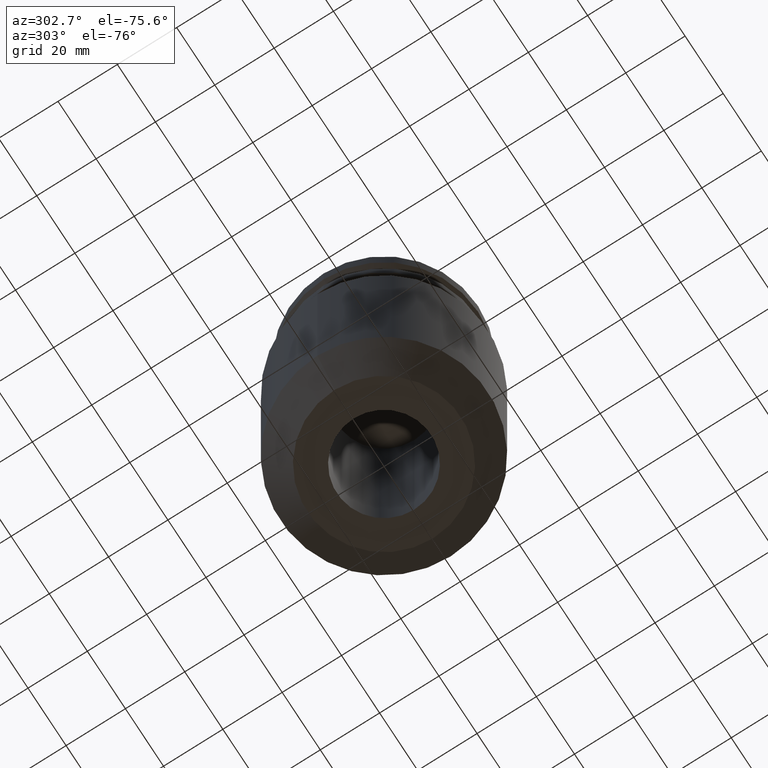
[diagram: clean part render]
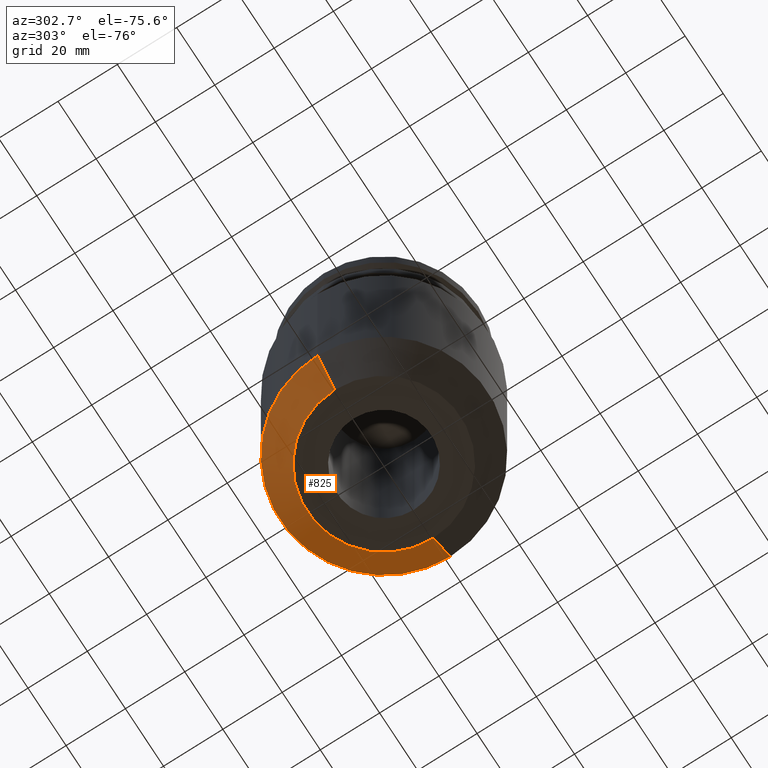
[diagram: same view with one face highlighted and labeled with its STEP entity id]
A machine part, auxiliary view. The second image highlights one B-rep face of the part: STEP entity #825.
In plain terms, the highlighted conical surface has half-angle 45 deg.
Its self-contained STEP definition (entity closure, byte-faithful):
#46 = ORIENTED_EDGE ( 'NONE', *, *, #542, .T. ) ;
#138 = EDGE_CURVE ( 'NONE', #228, #381, #186, .T. ) ;
#143 = DIRECTION ( 'NONE',  ( 1.000000000000000000, 0.000000000000000000, 0.000000000000000000 ) ) ;
#161 = DIRECTION ( 'NONE',  ( 1.000000000000000000, 0.000000000000000000, 0.000000000000000000 ) ) ;
#168 = ORIENTED_EDGE ( 'NONE', *, *, #657, .F. ) ;
#185 = CARTESIAN_POINT ( 'NONE',  ( -34.95000000000000284, 4.280140563019999423E-15, -105.2000000000000028 ) ) ;
#186 = CIRCLE ( 'NONE', #466, 34.95000000000000284 ) ;
#218 = DIRECTION ( 'NONE',  ( 1.000000000000000000, 0.000000000000000000, 0.000000000000000000 ) ) ;
#223 = VECTOR ( 'NONE', #768, 999.9999999999998863 ) ;
#228 = VERTEX_POINT ( 'NONE', #643 ) ;
#277 = CARTESIAN_POINT ( 'NONE',  ( 0.000000000000000000, 0.000000000000000000, -114.2999999999999972 ) ) ;
#291 = FACE_OUTER_BOUND ( 'NONE', #430, .T. ) ;
#300 = ORIENTED_EDGE ( 'NONE', *, *, #817, .T. ) ;
#381 = VERTEX_POINT ( 'NONE', #185 ) ;
#408 = AXIS2_PLACEMENT_3D ( 'NONE', #794, #766, #218 ) ;
#430 = EDGE_LOOP ( 'NONE', ( #300, #46, #438, #168 ) ) ;
#438 = ORIENTED_EDGE ( 'NONE', *, *, #138, .F. ) ;
#440 = AXIS2_PLACEMENT_3D ( 'NONE', #277, #619, #161 ) ;
#448 = VERTEX_POINT ( 'NONE', #462 ) ;
#462 = CARTESIAN_POINT ( 'NONE',  ( -25.84999999999996945, 3.722926269407952606E-15, -114.2999999999999972 ) ) ;
#466 = AXIS2_PLACEMENT_3D ( 'NONE', #606, #549, #143 ) ;
#477 = CIRCLE ( 'NONE', #408, 25.84999999999996945 ) ;
#496 = CARTESIAN_POINT ( 'NONE',  ( -25.84999999999996945, 3.165711975795904211E-15, -114.2999999999999972 ) ) ;
#519 = CARTESIAN_POINT ( 'NONE',  ( 25.84999999999996945, 0.000000000000000000, -114.2999999999999972 ) ) ;
#523 = VECTOR ( 'NONE', #845, 999.9999999999998863 ) ;
#542 = EDGE_CURVE ( 'NONE', #448, #381, #751, .T. ) ;
#549 = DIRECTION ( 'NONE',  ( -0.000000000000000000, -0.000000000000000000, 1.000000000000000000 ) ) ;
#606 = CARTESIAN_POINT ( 'NONE',  ( 0.000000000000000000, 0.000000000000000000, -105.2000000000000028 ) ) ;
#618 = VERTEX_POINT ( 'NONE', #519 ) ;
#619 = DIRECTION ( 'NONE',  ( -0.000000000000000000, -0.000000000000000000, 1.000000000000000000 ) ) ;
#639 = CARTESIAN_POINT ( 'NONE',  ( 25.84999999999996945, 0.000000000000000000, -114.2999999999999972 ) ) ;
#643 = CARTESIAN_POINT ( 'NONE',  ( 34.95000000000000284, 0.000000000000000000, -105.2000000000000028 ) ) ;
#657 = EDGE_CURVE ( 'NONE', #618, #228, #851, .T. ) ;
#690 = CONICAL_SURFACE ( 'NONE', #440, 25.84999999999996945, 0.7853981633974501664 ) ;
#751 = LINE ( 'NONE', #496, #223 ) ;
#766 = DIRECTION ( 'NONE',  ( -0.000000000000000000, -0.000000000000000000, 1.000000000000000000 ) ) ;
#768 = DIRECTION ( 'NONE',  ( -0.7071067811865489050, 8.659560562354950115E-17, 0.7071067811865462405 ) ) ;
#794 = CARTESIAN_POINT ( 'NONE',  ( 0.000000000000000000, 0.000000000000000000, -114.2999999999999972 ) ) ;
#817 = EDGE_CURVE ( 'NONE', #618, #448, #477, .T. ) ;
#825 = ADVANCED_FACE ( 'NONE', ( #291 ), #690, .T. ) ;
#845 = DIRECTION ( 'NONE',  ( 0.7071067811865489050, 0.000000000000000000, 0.7071067811865462405 ) ) ;
#851 = LINE ( 'NONE', #639, #523 ) ;